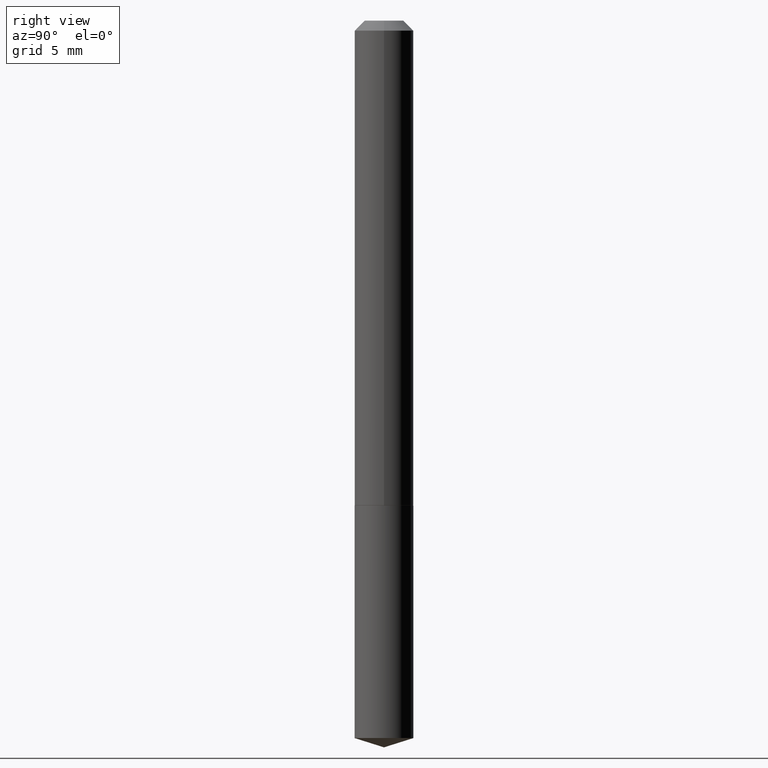
[diagram: clean part render]
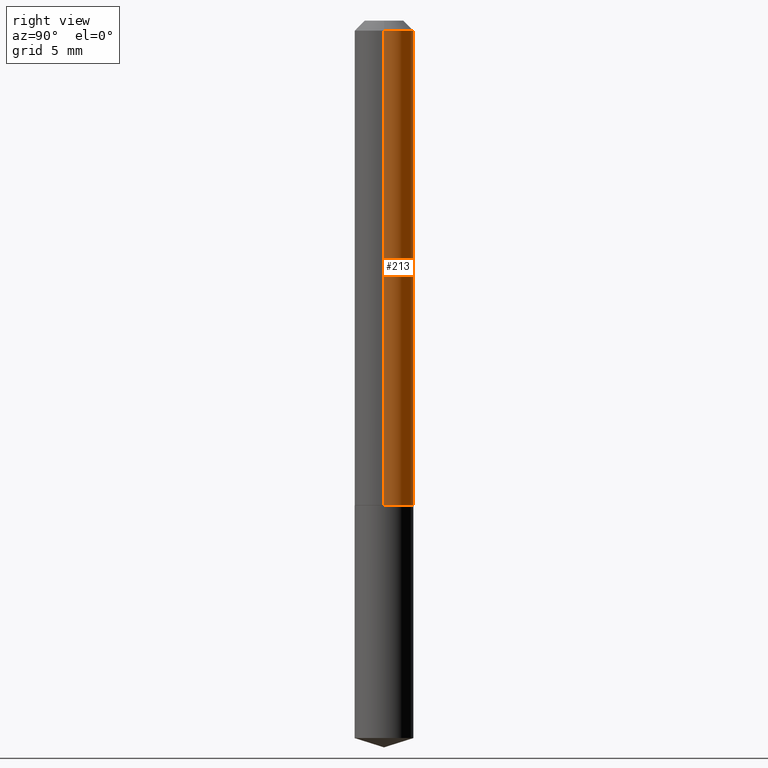
[diagram: same view with one face highlighted and labeled with its STEP entity id]
A machine part, right view. The second image highlights one B-rep face of the part: STEP entity #213.
In plain terms, the highlighted cylindrical surface (edge-blend (fillet) strip) has radius 2.3495 mm, axis along (-0, 0, 1).
Its self-contained STEP definition (entity closure, byte-faithful):
#1 = CARTESIAN_POINT ( 'NONE',  ( 0.000000000000000000, 0.000000000000000000, 0.000000000000000000 ) ) ;
#22 = CIRCLE ( 'NONE', #334, 0.09250000000000017930 ) ;
#24 = LINE ( 'NONE', #51, #115 ) ;
#29 = DIRECTION ( 'NONE',  ( -2.445468806185136597E-29, 3.491481338843145583E-15, 1.000000000000000000 ) ) ;
#33 = DIRECTION ( 'NONE',  ( -2.445468806185136877E-29, 3.491481338843145188E-15, 1.000000000000000000 ) ) ;
#38 = CARTESIAN_POINT ( 'NONE',  ( -0.09250000000000008216, 6.572520305780932557E-16, -4.550014958485792374E-30 ) ) ;
#51 = CARTESIAN_POINT ( 'NONE',  ( 0.09250000000000008216, -6.459240476859802821E-16, 4.510463517611244952E-30 ) ) ;
#52 = DIRECTION ( 'NONE',  ( 1.000000000000000000, -6.982962677686267499E-15, 4.876176775795936353E-29 ) ) ;
#54 = CARTESIAN_POINT ( 'NONE',  ( 0.09250000000000017930, -5.963799274877977150E-15, -1.523100000000000120 ) ) ;
#68 = EDGE_CURVE ( 'NONE', #276, #373, #24, .T. ) ;
#84 = VECTOR ( 'NONE', #33, 39.37007874015748143 ) ;
#88 = CARTESIAN_POINT ( 'NONE',  ( 7.642090019328602662E-31, -1.091087918388490267E-16, -0.03125000000000020817 ) ) ;
#91 = ORIENTED_EDGE ( 'NONE', *, *, #339, .T. ) ;
#96 = ORIENTED_EDGE ( 'NONE', *, *, #366, .T. ) ;
#110 = DIRECTION ( 'NONE',  ( -2.445468806185136597E-29, 3.491481338843145583E-15, 1.000000000000000000 ) ) ;
#115 = VECTOR ( 'NONE', #327, 39.37007874015748143 ) ;
#117 = ORIENTED_EDGE ( 'NONE', *, *, #68, .F. ) ;
#144 = DIRECTION ( 'NONE',  ( -2.445468806185136597E-29, 3.491481338843145583E-15, 1.000000000000000000 ) ) ;
#170 = AXIS2_PLACEMENT_3D ( 'NONE', #1, #110, #52 ) ;
#173 = CYLINDRICAL_SURFACE ( 'NONE', #170, 0.09250000000000008216 ) ;
#177 = FACE_OUTER_BOUND ( 'NONE', #218, .T. ) ;
#205 = CARTESIAN_POINT ( 'NONE',  ( -0.09250000000000017930, -4.660623196613901936E-15, -1.523100000000000120 ) ) ;
#213 = ADVANCED_FACE ( 'NONE', ( #177 ), #173, .T. ) ;
#218 = EDGE_LOOP ( 'NONE', ( #96, #91, #226, #117 ) ) ;
#219 = VERTEX_POINT ( 'NONE', #268 ) ;
#226 = ORIENTED_EDGE ( 'NONE', *, *, #304, .F. ) ;
#262 = CIRCLE ( 'NONE', #361, 0.09249999999999999889 ) ;
#268 = CARTESIAN_POINT ( 'NONE',  ( -0.09249999999999999889, -2.056239978937328693E-15, -0.03125000000000020817 ) ) ;
#269 = LINE ( 'NONE', #38, #84 ) ;
#270 = CARTESIAN_POINT ( 'NONE',  ( 0.09249999999999999889, -7.550328395248287911E-16, -0.03125000000000020817 ) ) ;
#271 = VERTEX_POINT ( 'NONE', #205 ) ;
#276 = VERTEX_POINT ( 'NONE', #54 ) ;
#304 = EDGE_CURVE ( 'NONE', #373, #219, #262, .T. ) ;
#327 = DIRECTION ( 'NONE',  ( -2.445468806185136877E-29, 3.491481338843145188E-15, 1.000000000000000000 ) ) ;
#334 = AXIS2_PLACEMENT_3D ( 'NONE', #337, #144, #344 ) ;
#337 = CARTESIAN_POINT ( 'NONE',  ( 3.724693538700582458E-29, -5.317875227191995586E-15, -1.523100000000000120 ) ) ;
#339 = EDGE_CURVE ( 'NONE', #271, #219, #269, .T. ) ;
#344 = DIRECTION ( 'NONE',  ( 1.000000000000000000, -6.982962677686272233E-15, 0.000000000000000000 ) ) ;
#359 = DIRECTION ( 'NONE',  ( 1.000000000000000000, -6.982962677686266711E-15, 0.000000000000000000 ) ) ;
#361 = AXIS2_PLACEMENT_3D ( 'NONE', #88, #29, #359 ) ;
#366 = EDGE_CURVE ( 'NONE', #276, #271, #22, .T. ) ;
#373 = VERTEX_POINT ( 'NONE', #270 ) ;